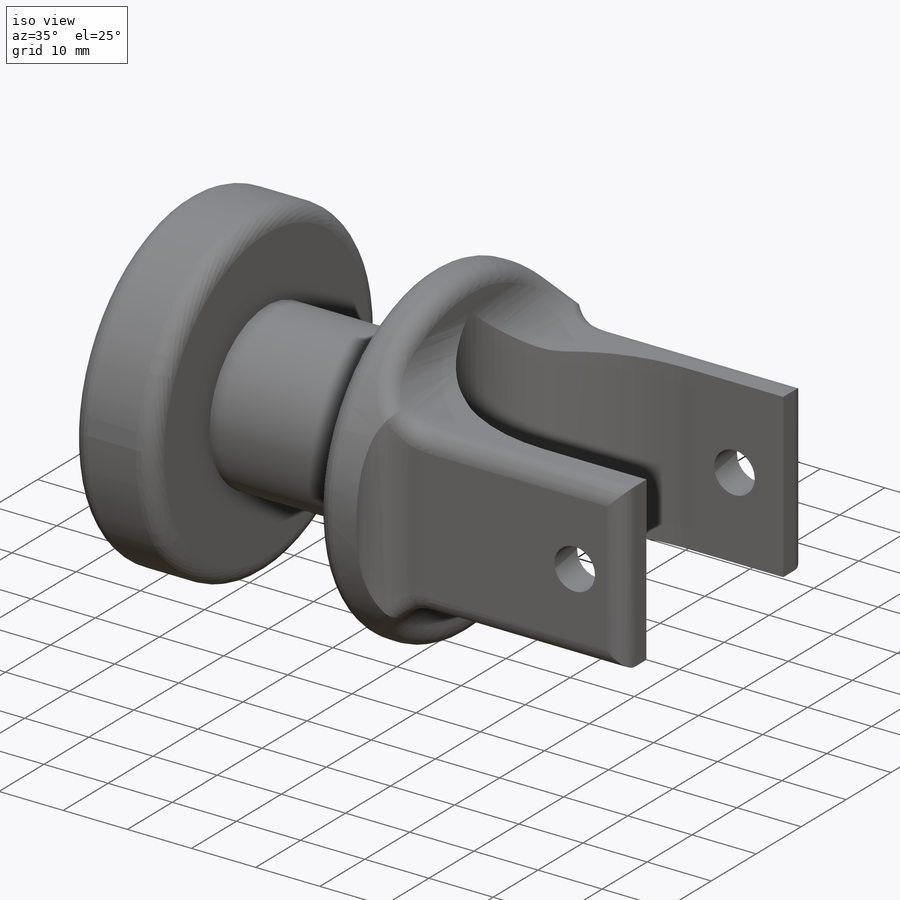
[diagram: iso view]
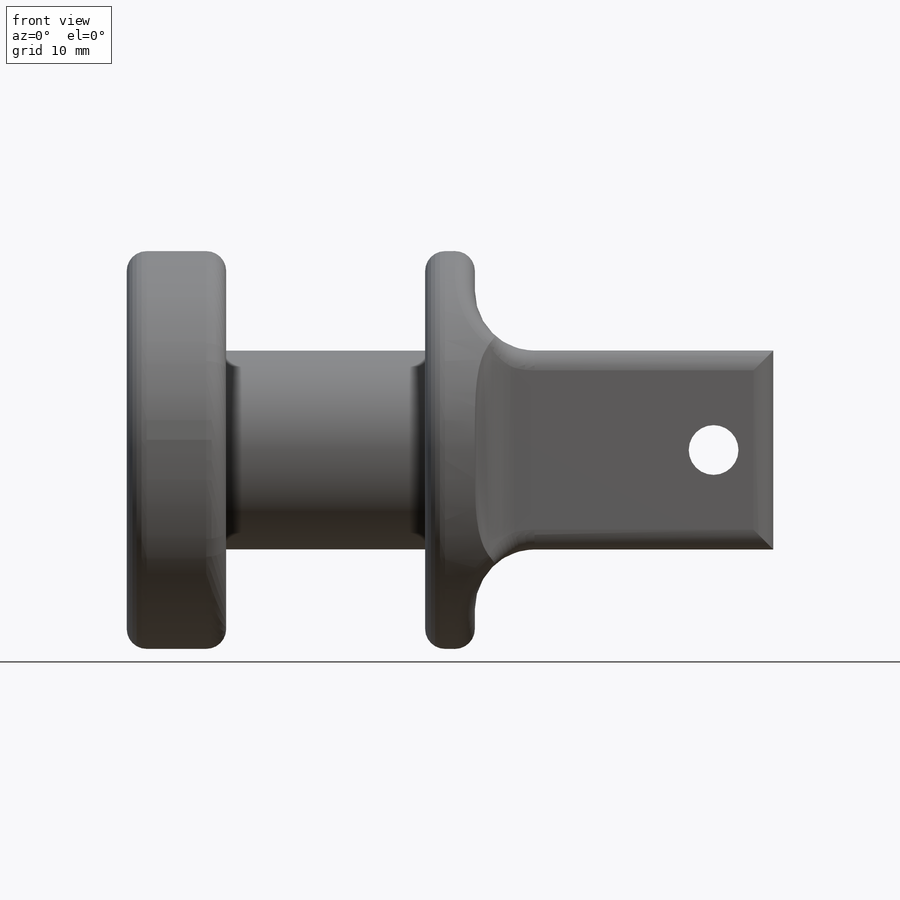
[diagram: front view]
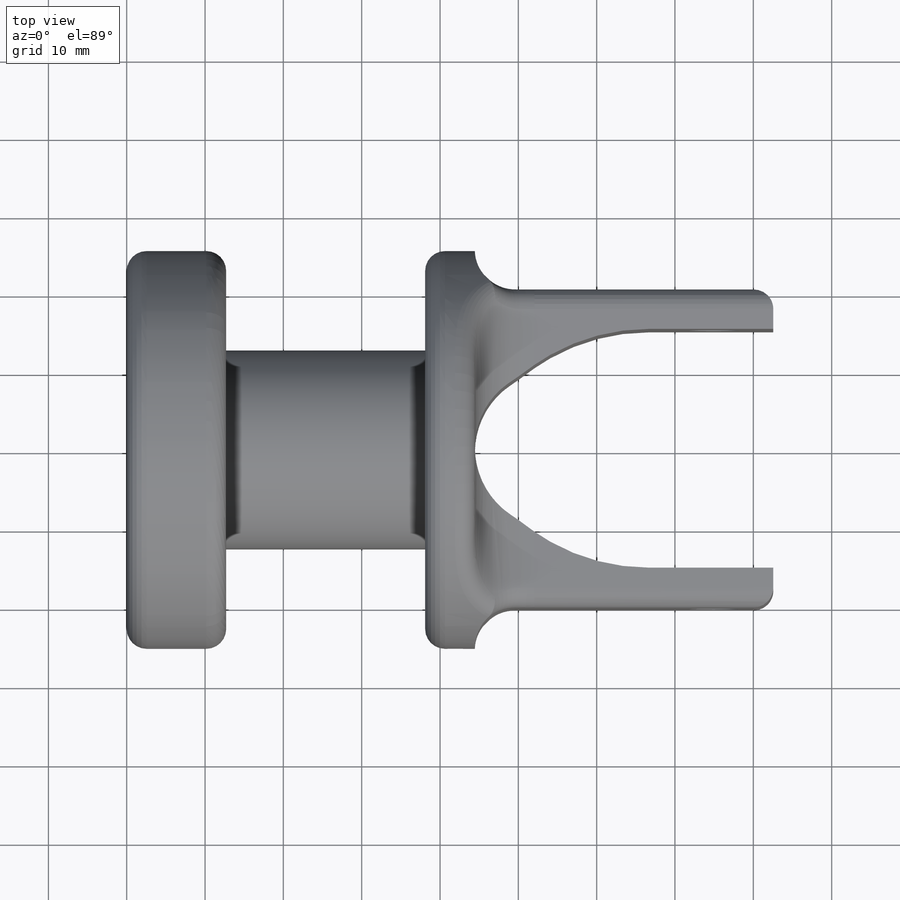
[diagram: top view]
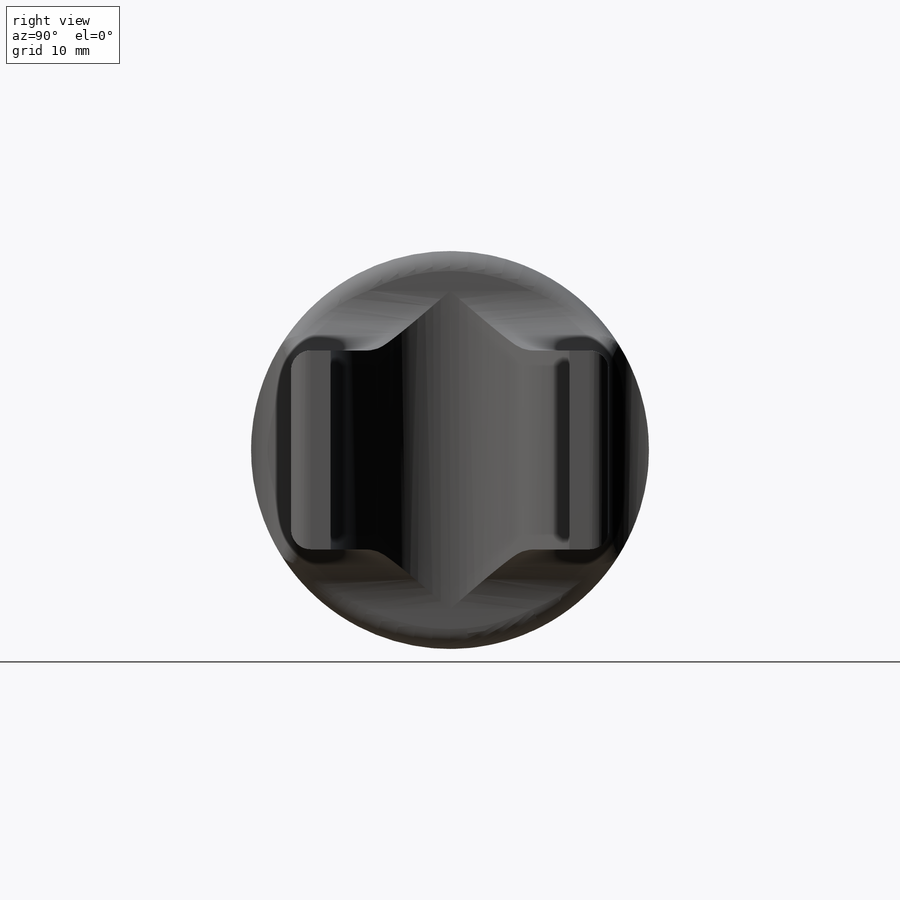
[diagram: right view]
SOLIDWORKS PART (.sldprt)
format: sldprt  version: not decoded by parser v0  size: 484,864 bytes
history: native  units: mm
features: fillet x7, sketch x6, extrude x4, cut_extrude x2, material x1 (+13 scaffold rows collapsed)
feature tree (33):
  scaffold x13  (default folders/planes/origin — collapsed)
  material  "Material <not specified>"
  sketch  "Sketch1"  dims[D1=50.8mm]
  extrude  "Boss-Extrude1"  Depth=12.7mm
  sketch  "Sketch2"  dims[D1=25.4mm]
  extrude  "Boss-Extrude2"  Depth=25.4mm
  sketch  "Sketch3"
  extrude  "Boss-Extrude3"  Depth=6.35mm
  sketch  "Sketch4"  dims[D1=10.16mm D2=10.16mm D3=25.4mm]
  extrude  "Boss-Extrude4"  Depth=38.1mm
  fillet  "Fillet1"  Radius=7.62mm
  fillet  "Fillet2"  Radius=5.08mm
  fillet  "Fillet3"  Radius=10.16mm
  fillet  "Fillet4"  Radius=2.54mm
  fillet  "Fillet5"  Radius=2.54mm
  sketch  "Sketch5"  dims[c1.D1=2.54mm c1.D2=25.4mm c2.D1=30.48mm]
  cut_extrude  "Cut-Extrude1"  [1 undecoded]
  fillet  "Fillet6"  Radius=50.8mm
  fillet  "Fillet7"  Radius=25.4mm
  sketch  "Sketch6"  dims[D2=6.35mm D1=7.62mm]
  cut_extrude  "Cut-Extrude2"  Depth=38.1mm
decode coverage: 17 of 19 modeling features carry decoded parameters
note: 1 parameter value undecoded
note: suppression state not decoded; provenance and decode notes live in map.json
